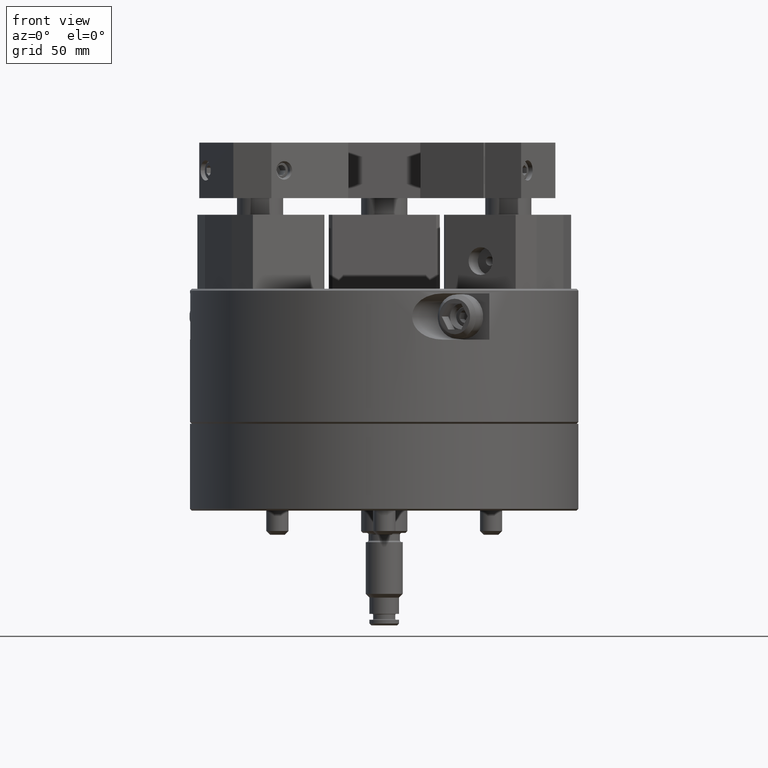
[diagram: clean part render]
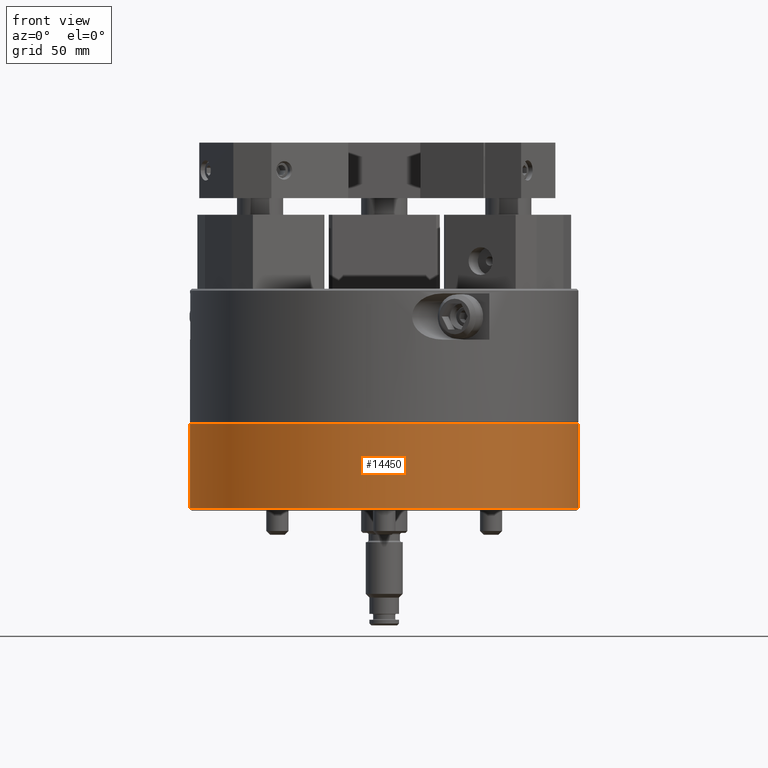
[diagram: same view with one face highlighted and labeled with its STEP entity id]
A machine part, front view. The second image highlights one B-rep face of the part: STEP entity #14450.
In plain terms, the highlighted cylindrical surface (bore or boss wall) has radius 105 mm, axis along (0, 0, -1).
Its self-contained STEP definition (entity closure, byte-faithful):
#2753=CIRCLE('',#16207,105.);
#2762=CIRCLE('',#16221,105.);
#4161=ORIENTED_EDGE('',*,*,#7352,.T.);
#4162=ORIENTED_EDGE('',*,*,#7343,.T.);
#7343=EDGE_CURVE('',#9072,#9072,#2753,.T.);
#7352=EDGE_CURVE('',#9079,#9079,#2762,.T.);
#9072=VERTEX_POINT('',#23528);
#9079=VERTEX_POINT('',#23549);
#10734=EDGE_LOOP('',(#4161));
#10735=EDGE_LOOP('',(#4162));
#12530=FACE_BOUND('',#10734,.T.);
#12531=FACE_BOUND('',#10735,.T.);
#13939=CYLINDRICAL_SURFACE('',#16224,105.);
#14450=ADVANCED_FACE('',(#12530,#12531),#13939,.T.);
#16207=AXIS2_PLACEMENT_3D('',#23527,#18797,#18798);
#16221=AXIS2_PLACEMENT_3D('',#23548,#18825,#18826);
#16224=AXIS2_PLACEMENT_3D('',#23552,#18831,#18832);
#18797=DIRECTION('',(0.,0.,1.));
#18798=DIRECTION('',(-1.,0.,0.));
#18825=DIRECTION('',(0.,0.,-1.));
#18826=DIRECTION('',(-1.,0.,0.));
#18831=DIRECTION('',(0.,0.,-1.));
#18832=DIRECTION('',(-1.,0.,0.));
#23527=CARTESIAN_POINT('',(0.,0.,-46.));
#23528=CARTESIAN_POINT('',(-105.,0.,-46.));
#23548=CARTESIAN_POINT('',(0.,0.,0.));
#23549=CARTESIAN_POINT('',(-105.,0.,0.));
#23552=CARTESIAN_POINT('',(0.,0.,-47.));